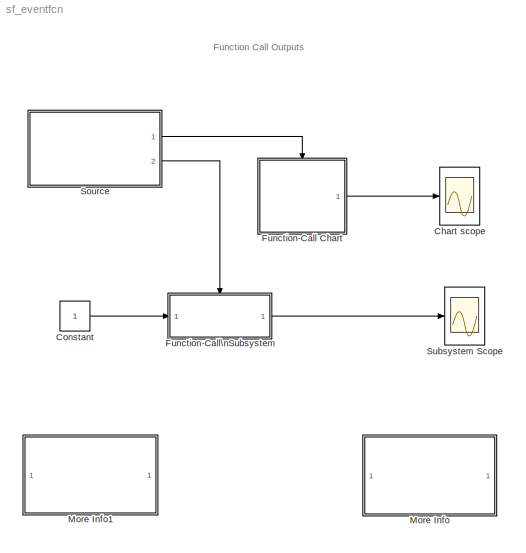
MODEL sf_eventfcn
KIND model
BLOCK [Scope] Chart scope
  DataFormat = StructureWithTime
  NumInputPorts = 1
  Ports = [1]
  TimeRange = 30
  YMax = 1
  YMin = 0
  ZoomMode = xonly
BLOCK [Constant] Constant
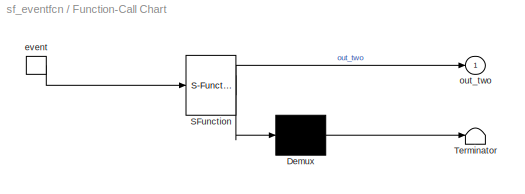
BLOCK [SubSystem] Function-Call Chart
  MaskDescription = Stateflow diagram
  MaskDisplay = plot(sf('Private','sfblk','xIcon'),sf('Private','sfblk','yIcon'));text(0.5,0,sf('Private', 'sfblk', 'tIcon'),'HorizontalAl','Center','VerticalAl','Bottom');
  MaskIconFrame = off
  MaskIconOpaque = off
  MaskIconRotate = none
  MaskIconUnits = autoscale
  MaskSelfModifiable = on
  MaskType = Stateflow
  MinAlgLoopOccurrences = off
  Ports = [0, 1, 0, 1]
  PropExecContextAcrossSSBoundary = on
  RTWSystemCode = Auto
  TreatAsAtomicUnit = on
BLOCK [Demux] Function-Call Chart/ Demux 
  Outputs = 1
  Ports = [1, 1]
BLOCK [S-Function] Function-Call Chart/ SFunction 
  FunctionName = sf_sfun
  PortCounts = [1 2]
  Ports = [1, 2]
  Tag = Stateflow S-Function sf_eventfcn 3
BLOCK [Terminator] Function-Call Chart/ Terminator 
BLOCK [TriggerPort] Function-Call Chart/event
  Ports = [0, 1]
  ShowOutputPort = on
  TriggerType = function-call
  ZeroCross = off
BLOCK [Outport] Function-Call Chart/out_two
  IconDisplay = Port number
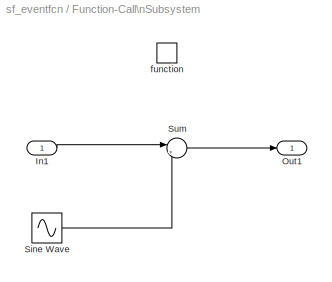
BLOCK [SubSystem] Function-Call\nSubsystem
  MinAlgLoopOccurrences = off
  Ports = [1, 1, 0, 1]
  PropExecContextAcrossSSBoundary = on
  RTWSystemCode = Auto
  TreatAsAtomicUnit = on
BLOCK [Inport] Function-Call\nSubsystem/In1
  IconDisplay = Port number
  LatchInput = off
  Port = 1
BLOCK [Outport] Function-Call\nSubsystem/Out1
  IconDisplay = Port number
BLOCK [Sin] Function-Call\nSubsystem/Sine Wave
  Ports = [0, 1]
  SineType = Time based
BLOCK [Sum] Function-Call\nSubsystem/Sum
  IconShape = round
  Inputs = |++
  Ports = [2, 1]
BLOCK [TriggerPort] Function-Call\nSubsystem/function
  Ports = []
  TriggerType = function-call
  ZeroCross = off
BLOCK [SubSystem] More Info
  MaskDisplay = disp('Double click\\nhere for\\ninformation on\\nthis demonstration')
  MaskIconFrame = on
  MaskIconOpaque = on
  MaskIconRotate = none
  MaskIconUnits = autoscale
  MinAlgLoopOccurrences = off
  Ports = []
  PropExecContextAcrossSSBoundary = on
  RTWSystemCode = Auto
  TreatAsAtomicUnit = off
BLOCK [SubSystem] More Info1
  MaskDisplay = disp('Double click\\nhere for<path> Help')
  MaskIconFrame = on
  MaskIconOpaque = on
  MaskIconRotate = none
  MaskIconUnits = autoscale
  MinAlgLoopOccurrences = off
  OpenFcn = simcad(bdroot);
  Ports = []
  PropExecContextAcrossSSBoundary = on
  RTWSystemCode = Auto
  TreatAsAtomicUnit = off
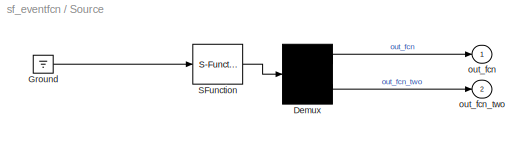
BLOCK [SubSystem] Source
  MaskDescription = Stateflow diagram
  MaskDisplay = plot(sf('Private','sfblk','xIcon'),sf('Private','sfblk','yIcon'));text(0.5,0,sf('Private', 'sfblk', 'tIcon'),'HorizontalAl','Center','VerticalAl','Bottom');
  MaskIconFrame = off
  MaskIconOpaque = off
  MaskIconRotate = none
  MaskIconUnits = autoscale
  MaskSelfModifiable = on
  MaskType = Stateflow
  MinAlgLoopOccurrences = off
  Ports = [0, 2]
  PropExecContextAcrossSSBoundary = on
  RTWSystemCode = Auto
  TreatAsAtomicUnit = off
BLOCK [Demux] Source/ Demux 
  Outputs = 2
  Ports = [1, 2]
BLOCK [Ground] Source/ Ground 
BLOCK [S-Function] Source/ SFunction 
  FunctionName = sf_sfun
  PortCounts = [1 1]
  Ports = [1, 1]
  Tag = Stateflow S-Function sf_eventfcn 1
BLOCK [Outport] Source/out_fcn
  IconDisplay = Port number
BLOCK [Outport] Source/out_fcn_two
  IconDisplay = Port number
  Port = 2
BLOCK [Scope] Subsystem Scope
  DataFormat = StructureWithTime
  LimitDataPoints = off
  NumInputPorts = 1
  Ports = [1]
  SaveName = ScopeData1
  TimeRange = 30
  YMax = 2
  YMin = 0
  ZoomMode = xonly
ANNOTATION (root): Function Call Outputs
ANNOTATION More Info: Function Call Outputs
ANNOTATION More Info: Function call outputs are used to control the activation times of other Stateflow charts or subsystems. \nThis demonstration illustrates how a control Stateflow chart, named 'Source', determines the activation\ntimes of another Stateflow chart and also function-call subsystem. The 'Function-Call Chart' is activated\nafter every '3' simulation time steps by the function-call signal 'out_fcn'. The '...<+338ch>
LINE Constant:1 -> Function-Call\nSubsystem:1
LINE Function-Call Chart/ Demux :1 -> Function-Call Chart/ Terminator :1
LINE Function-Call Chart/ SFunction :1 -> Function-Call Chart/ Demux :1
LINE Function-Call Chart/ SFunction :2 -> Function-Call Chart/out_two:1
LINE Function-Call Chart/event:1 -> Function-Call Chart/ SFunction :1
LINE Function-Call Chart:1 -> Chart scope:1
LINE Function-Call\nSubsystem/In1:1 -> Function-Call\nSubsystem/Sum:1
LINE Function-Call\nSubsystem/Sine Wave:1 -> Function-Call\nSubsystem/Sum:2
LINE Function-Call\nSubsystem/Sum:1 -> Function-Call\nSubsystem/Out1:1
LINE Function-Call\nSubsystem:1 -> Subsystem Scope:1
LINE Source/ Demux :1 -> Source/out_fcn:1
LINE Source/ Demux :2 -> Source/out_fcn_two:1
LINE Source/ Ground :1 -> Source/ SFunction :1
LINE Source/ SFunction :1 -> Source/ Demux :1
LINE Source:1 -> Function-Call Chart:trigger
LINE Source:2 -> Function-Call\nSubsystem:trigger
CHART Source states=4 transitions=4
  STATE_LABEL 'A'
  STATE_LABEL 'One'
  STATE_LABEL 'Two'
  STATE_LABEL 'B'
CHART Function-Call Chart states=2 transitions=3
  STATE_LABEL 'A\\nen:out_two=0;'
  STATE_LABEL 'B\\nen:out_two=1;'
note: 1 file-system path scrubbed to <path> (not preserved elsewhere — flat text is the only slx artifact)
